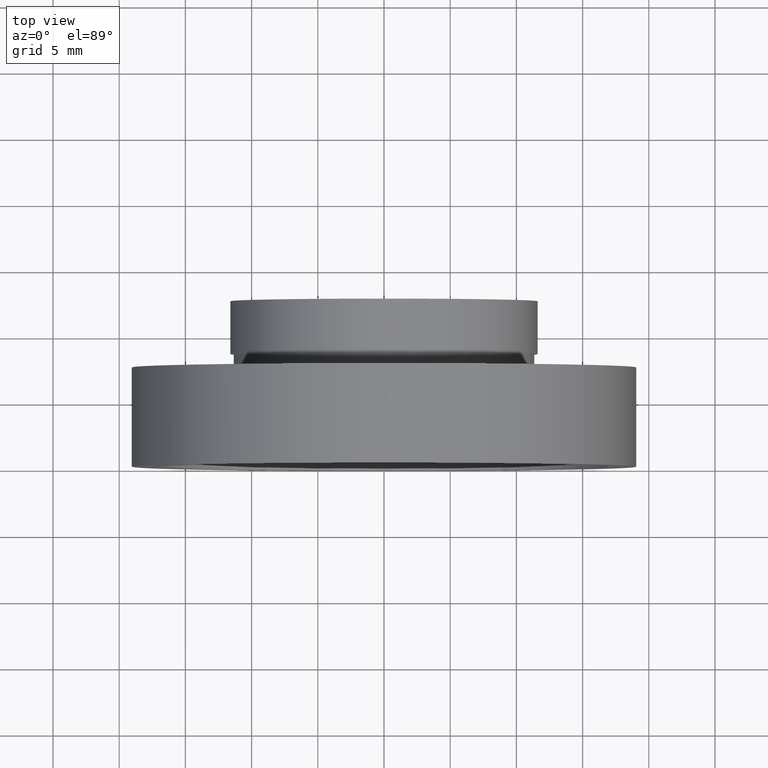
[diagram: clean part render]
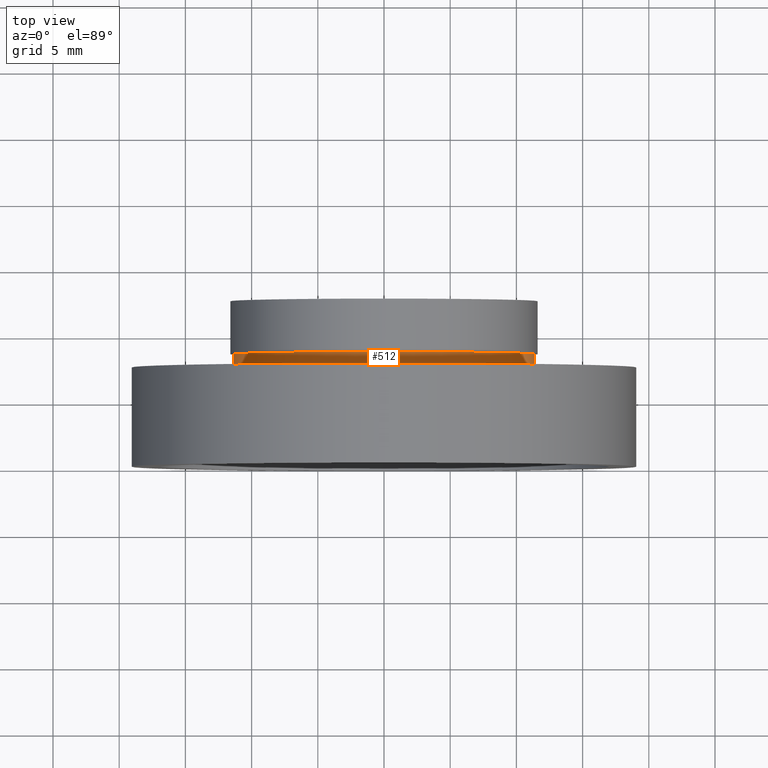
[diagram: same view with one face highlighted and labeled with its STEP entity id]
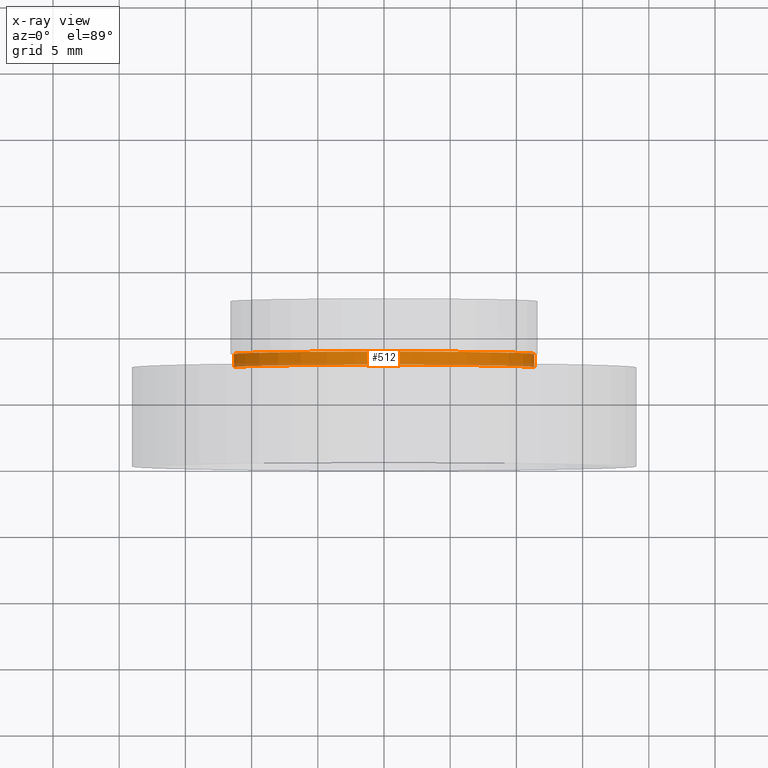
[diagram: x-ray of the same camera — body ghosted, the highlighted face saturated]
A machine part, top view. The second image highlights one B-rep face of the part: STEP entity #512.
The next image is the same camera in x-ray: the body ghosted, the highlighted face saturated — about 15% of this face is hidden behind the body in this view.
In plain terms, the highlighted cylindrical surface (partial cylindrical patch) has radius 11.35 mm, axis along (-0, 1, -0).
Its self-contained STEP definition (entity closure, byte-faithful):
#3 = CYLINDRICAL_SURFACE ( 'NONE', #623, 11.35000000000000000 ) ;
#11 = EDGE_CURVE ( 'NONE', #40, #461, #475, .T. ) ;
#27 = DIRECTION ( 'NONE',  ( -1.224646799147351000E-016, 1.000000000000000000, -0.0000000000000000000 ) ) ;
#40 = VERTEX_POINT ( 'NONE', #374 ) ;
#72 = DIRECTION ( 'NONE',  ( -1.000000000000000000, 0.0000000000000000000, 0.0000000000000000000 ) ) ;
#80 = DIRECTION ( 'NONE',  ( -1.224646799147351000E-016, 1.000000000000000000, -0.0000000000000000000 ) ) ;
#93 = DIRECTION ( 'NONE',  ( -1.000000000000000000, -1.528390727732869900E-016, 0.0000000000000000000 ) ) ;
#115 = DIRECTION ( 'NONE',  ( -1.224646799147351000E-016, 1.000000000000000000, -0.0000000000000000000 ) ) ;
#133 = ORIENTED_EDGE ( 'NONE', *, *, #303, .F. ) ;
#142 = DIRECTION ( 'NONE',  ( -1.224646799147351000E-016, 1.000000000000000000, -0.0000000000000000000 ) ) ;
#201 = CARTESIAN_POINT ( 'NONE',  ( -11.34999999999999800, 7.499999999999994700, 0.0000000000000000000 ) ) ;
#210 = VECTOR ( 'NONE', #80, 1000.000000000000000 ) ;
#222 = EDGE_LOOP ( 'NONE', ( #288, #509, #391, #133 ) ) ;
#263 = CARTESIAN_POINT ( 'NONE',  ( -11.34999999999999800, 8.499999999999992900, 0.0000000000000000000 ) ) ;
#288 = ORIENTED_EDGE ( 'NONE', *, *, #529, .T. ) ;
#289 = CARTESIAN_POINT ( 'NONE',  ( 11.35000000000000100, 8.499999999999996400, 1.389974117032245900E-015 ) ) ;
#303 = EDGE_CURVE ( 'NONE', #545, #510, #600, .T. ) ;
#313 = CIRCLE ( 'NONE', #478, 11.35000000000000000 ) ;
#320 = CARTESIAN_POINT ( 'NONE',  ( -11.35000000000000000, 16.88601823708207700, 0.0000000000000000000 ) ) ;
#361 = EDGE_CURVE ( 'NONE', #510, #461, #313, .T. ) ;
#365 = CARTESIAN_POINT ( 'NONE',  ( 11.35000000000000000, 16.88601823708207700, 1.389974117032245900E-015 ) ) ;
#374 = CARTESIAN_POINT ( 'NONE',  ( 11.35000000000000100, 7.499999999999998200, 1.389974117032245900E-015 ) ) ;
#391 = ORIENTED_EDGE ( 'NONE', *, *, #361, .F. ) ;
#408 = CARTESIAN_POINT ( 'NONE',  ( 0.0000000000000000000, 16.88601823708207700, 0.0000000000000000000 ) ) ;
#448 = DIRECTION ( 'NONE',  ( -1.000000000000000000, -1.528390727732869900E-016, 0.0000000000000000000 ) ) ;
#461 = VERTEX_POINT ( 'NONE', #289 ) ;
#475 = LINE ( 'NONE', #365, #528 ) ;
#478 = AXIS2_PLACEMENT_3D ( 'NONE', #499, #495, #448 ) ;
#495 = DIRECTION ( 'NONE',  ( -1.224646799147351000E-016, 1.000000000000000000, -0.0000000000000000000 ) ) ;
#498 = FACE_OUTER_BOUND ( 'NONE', #222, .T. ) ;
#499 = CARTESIAN_POINT ( 'NONE',  ( 1.026991039163388100E-015, 8.499999999999994700, 0.0000000000000000000 ) ) ;
#509 = ORIENTED_EDGE ( 'NONE', *, *, #11, .T. ) ;
#510 = VERTEX_POINT ( 'NONE', #263 ) ;
#512 = ADVANCED_FACE ( 'NONE', ( #498 ), #3, .T. ) ;
#516 = AXIS2_PLACEMENT_3D ( 'NONE', #603, #27, #93 ) ;
#520 = CIRCLE ( 'NONE', #516, 11.35000000000000000 ) ;
#528 = VECTOR ( 'NONE', #142, 1000.000000000000000 ) ;
#529 = EDGE_CURVE ( 'NONE', #545, #40, #520, .T. ) ;
#545 = VERTEX_POINT ( 'NONE', #201 ) ;
#600 = LINE ( 'NONE', #320, #210 ) ;
#603 = CARTESIAN_POINT ( 'NONE',  ( 1.149455719078123100E-015, 7.499999999999996400, 0.0000000000000000000 ) ) ;
#623 = AXIS2_PLACEMENT_3D ( 'NONE', #408, #115, #72 ) ;